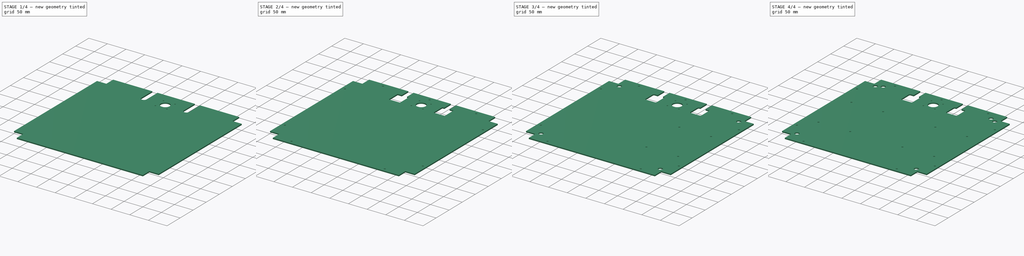
[diagram: build sequence overview — one tinted view per stage of 4, left to right]
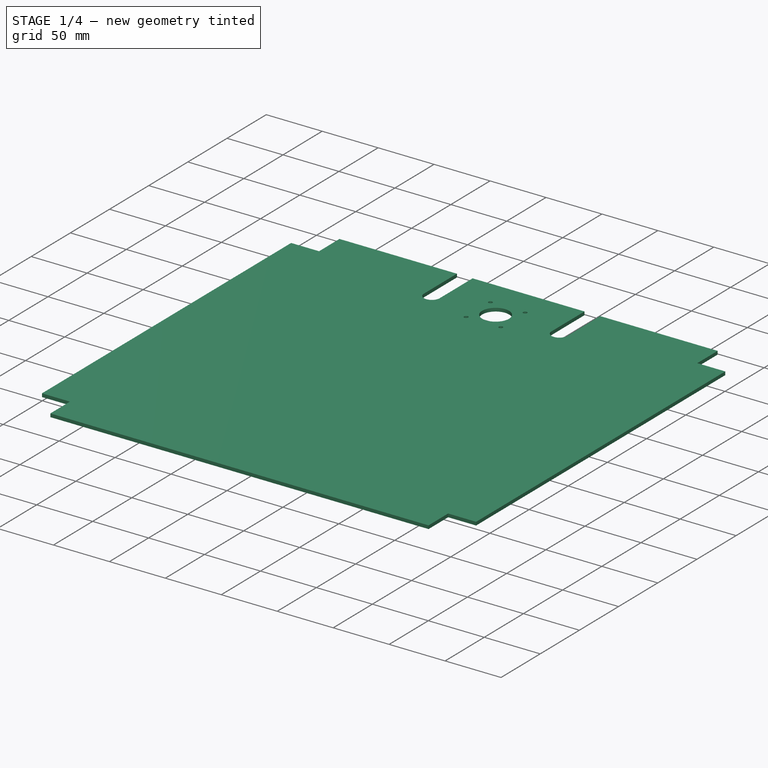
[diagram: stage 1 of 4 — iso view after this stage's code; geometry added in this stage tinted green]
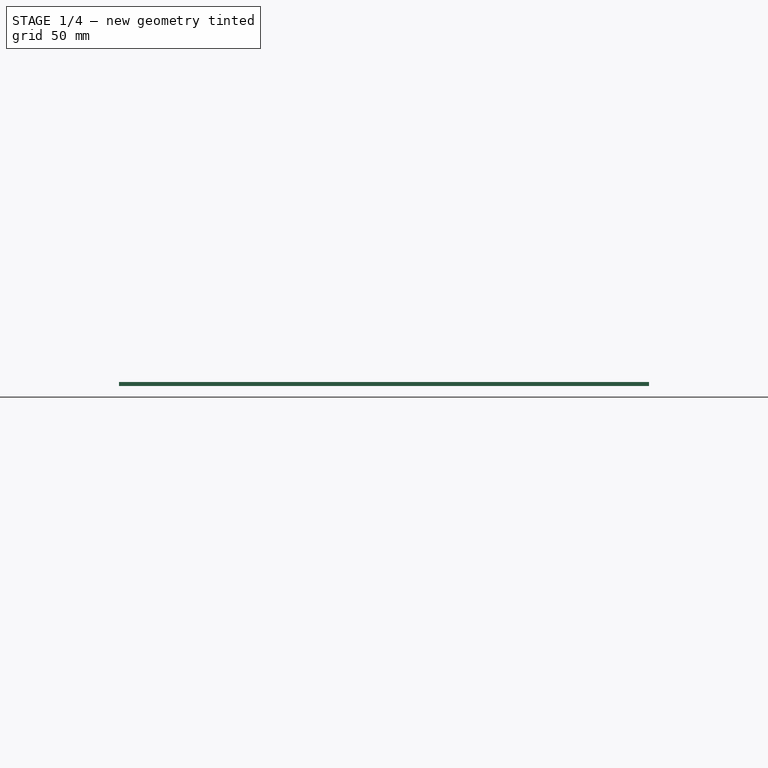
[diagram: stage 1 of 4 — front view after this stage's code; geometry added in this stage tinted green]
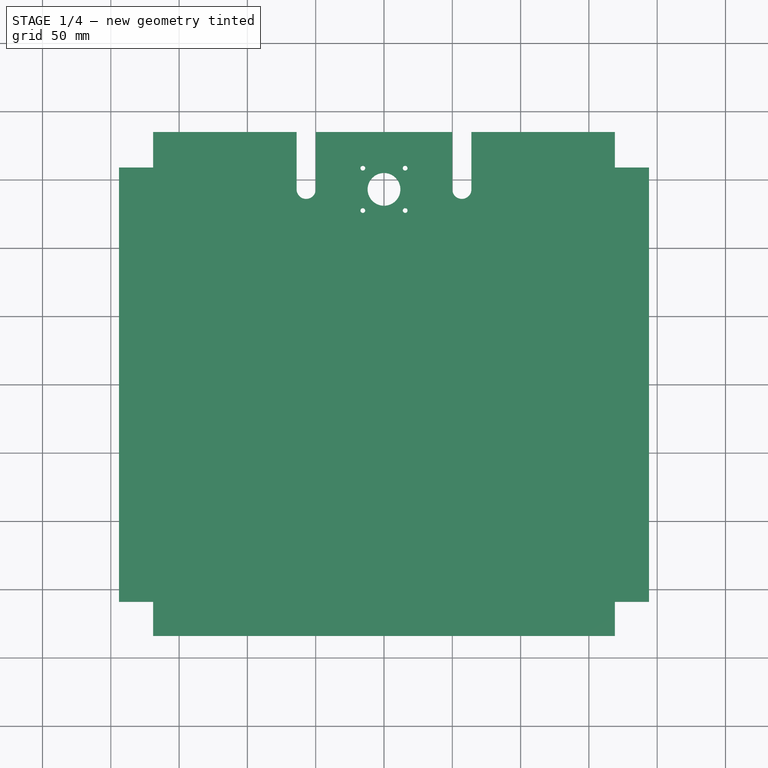
[diagram: stage 1 of 4 — top view after this stage's code; geometry added in this stage tinted green]
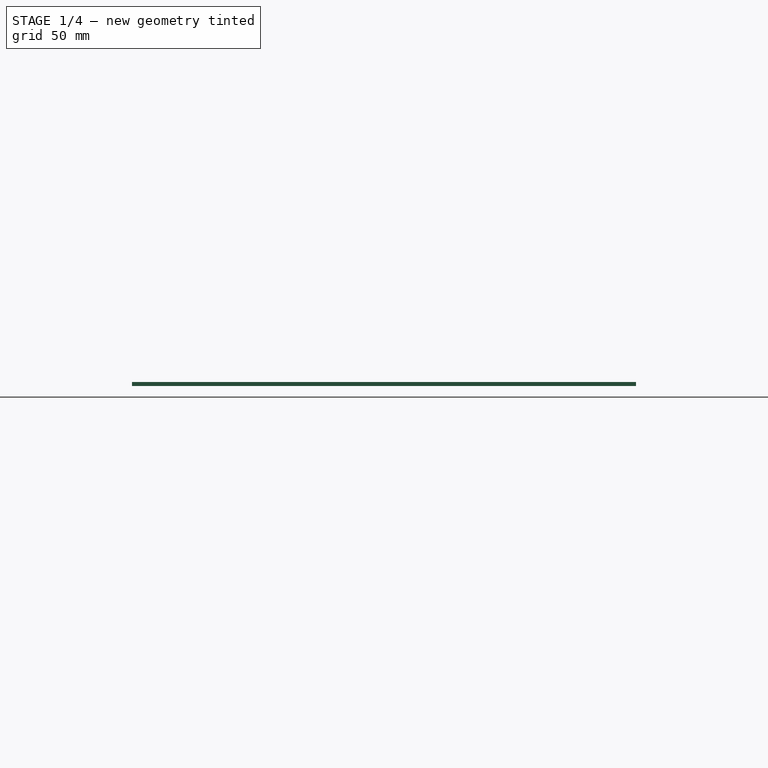
[diagram: stage 1 of 4 — right view after this stage's code; geometry added in this stage tinted green]
FCSTD DOCUMENT  (FreeCAD 0.17R13522 (Git))
Label: Corelia_0_Base_plate
License: All rights reserved
LicenseURL: http://en.wikipedia.org/wiki/All_rights_reserved
objects: Sketcher::SketchObject×8, PartDesign::Pocket×7, PartDesign::Mirrored×4, PartDesign::Fillet×2, PartDesign::Pad×1, TechDraw::DrawSVGTemplate×1, PartDesign::Body×1, TechDraw::DrawViewPart×1, TechDraw::DrawPage×1
note: 31 computed .brp shape members not serialized (recipe doc carries the construction recipe); baked Part::Feature solids carry a one-line shape summary decoded from their .brp

FEATURE [Sketcher::SketchObject] Sketch
  MapMode = 5
  Support = -> [XY_Plane]
  sketch-geometry (4):
    g0: LineSegment StartX=-194 StartY=185 StartZ=0 EndX=194 EndY=185 EndZ=0
    g1: LineSegment StartX=194 StartY=185 StartZ=0 EndX=194 EndY=-184 EndZ=0
    g2: LineSegment StartX=194 StartY=-184 StartZ=0 EndX=-194 EndY=-184 EndZ=0
    g3: LineSegment StartX=-194 StartY=-184 StartZ=0 EndX=-194 EndY=185 EndZ=0
  constraints (12):
    c: Coincident(g0,g1)
    c: Coincident(g1,g2)
    c: Coincident(g2,g3)
    c: Coincident(g3,g0)
    c: Horizontal(g0)
    c: Horizontal(g2)
    c: Vertical(g1)
    c: Vertical(g3)
    c: DistanceX(g0,g0) = 388
    c: DistanceY(g1,g1) = 369
    c: DistanceX(g0) = 194
    c: DistanceY(g0) = 185
FEATURE [PartDesign::Pad] Pad
  Length = 3
  Length2 = 100
  Profile = -> Sketch
  Type = 0
FEATURE [Sketcher::SketchObject] Sketch001
  MapMode = 5
  Placement = pos=(0,0,3) rot=(0,0,1;0rad)
  Support = -> [Pad]
  sketch-geometry (8):
    g0: LineSegment StartX=169 StartY=185 StartZ=0 EndX=194 EndY=185 EndZ=0
    g1: LineSegment StartX=194 StartY=185 StartZ=0 EndX=194 EndY=159 EndZ=0
    g2: LineSegment StartX=194 StartY=159 StartZ=0 EndX=169 EndY=159 EndZ=0
    g3: LineSegment StartX=169 StartY=159 StartZ=0 EndX=169 EndY=185 EndZ=0
    g4: LineSegment StartX=194 StartY=-184 StartZ=0 EndX=169 EndY=-184 EndZ=0
    g5: LineSegment StartX=169 StartY=-184 StartZ=0 EndX=169 EndY=-159 EndZ=0
    g6: LineSegment StartX=169 StartY=-159 StartZ=0 EndX=194 EndY=-159 EndZ=0
    g7: LineSegment StartX=194 StartY=-159 StartZ=0 EndX=194 EndY=-184 EndZ=0
  constraints (24):
    c: Coincident(g0,g1)
    c: Coincident(g1,g2)
    c: Coincident(g2,g3)
    c: Coincident(g3,g0)
    c: Horizontal(g0)
    c: Horizontal(g2)
    c: Vertical(g1)
    c: Vertical(g3)
    c: DistanceX(g0,g0) = 25
    c: DistanceY(g1,g1) = 26
    c: DistanceX(g0) = 194
    c: DistanceY(g0) = 185
    c: Coincident(g4,g5)
    c: Coincident(g5,g6)
    c: Coincident(g6,g7)
    c: Coincident(g7,g4)
    c: Horizontal(g4)
    c: Horizontal(g6)
    c: Vertical(g5)
    c: Vertical(g7)
    c: Equal(g0,g6)
    c: PointOnObject(g0,g7)
    c: DistanceY(g4) = -184
    c: DistanceY(g7,g7) = 25
FEATURE [PartDesign::Pocket] Pocket
  BaseFeature = -> Pad
  Length = 5
  Length2 = 100
  Profile = -> Sketch001
  Type = 1
FEATURE [PartDesign::Mirrored] Mirrored
  BaseFeature = -> Pocket
  MirrorPlane = -> YZ_Plane
  Originals = -> [Pocket]
FEATURE [Sketcher::SketchObject] Sketch002
  MapMode = 5
  Placement = pos=(0,0,3) rot=(0,0,1;0rad)
  Support = -> [Mirrored]
  sketch-geometry (19):
    g0: LineSegment StartX=-64 StartY=185 StartZ=0 EndX=-50 EndY=185 EndZ=0
    g1: LineSegment StartX=-50 StartY=185 StartZ=0 EndX=-50 EndY=143 EndZ=0
    g2: LineSegment [constr] StartX=-50 StartY=143 StartZ=0 EndX=-64 EndY=143 EndZ=0
    g3: LineSegment StartX=-64 StartY=143 StartZ=0 EndX=-64 EndY=185 EndZ=0
    g4: ArcOfCircle CenterX=-57 CenterY=143 CenterZ=0 NormalX=0 NormalY=0 NormalZ=1 AngleXU=0 Radius=7 StartAngle=3.14159 EndAngle=6.28319
    g5: LineSegment StartX=50 StartY=185 StartZ=0 EndX=64 EndY=185 EndZ=0
    g6: LineSegment StartX=64 StartY=185 StartZ=0 EndX=64 EndY=143 EndZ=0
    g7: LineSegment [constr] StartX=64 StartY=143 StartZ=0 EndX=50 EndY=143 EndZ=0
    g8: LineSegment StartX=50 StartY=143 StartZ=0 EndX=50 EndY=185 EndZ=0
    g9: ArcOfCircle CenterX=57 CenterY=143 CenterZ=0 NormalX=0 NormalY=0 NormalZ=1 AngleXU=0 Radius=7 StartAngle=3.14159 EndAngle=6.28319
    g10: Circle CenterX=0 CenterY=143 CenterZ=0 NormalX=0 NormalY=0 NormalZ=1 AngleXU=0 Radius=12
    g11: LineSegment [constr] StartX=-15.5 StartY=158.5 StartZ=0 EndX=15.5 EndY=158.5 EndZ=0
    g12: LineSegment [constr] StartX=15.5 StartY=158.5 StartZ=0 EndX=15.5 EndY=127.5 EndZ=0
    g13: LineSegment [constr] StartX=15.5 StartY=127.5 StartZ=0 EndX=-15.5 EndY=127.5 EndZ=0
    g14: LineSegment [constr] StartX=-15.5 StartY=127.5 StartZ=0 EndX=-15.5 EndY=158.5 EndZ=0
    g15: Circle CenterX=-15.5 CenterY=158.5 CenterZ=0 NormalX=0 NormalY=0 NormalZ=1 AngleXU=0 Radius=1.75
    g16: Circle CenterX=15.5 CenterY=158.5 CenterZ=0 NormalX=0 NormalY=0 NormalZ=1 AngleXU=0 Radius=1.75
    g17: Circle CenterX=15.5 CenterY=127.5 CenterZ=0 NormalX=0 NormalY=0 NormalZ=1 AngleXU=0 Radius=1.75
    g18: Circle CenterX=-15.5 CenterY=127.5 CenterZ=0 NormalX=0 NormalY=0 NormalZ=1 AngleXU=0 Radius=1.75
  constraints (54):
    c: Coincident(g0,g1)
    c: Coincident(g1,g2)
    c: Coincident(g2,g3)
    c: Coincident(g3,g0)
    c: Horizontal(g0)
    c: Horizontal(g2)
    c: Vertical(g1)
    c: Vertical(g3)
    c: PointOnObject(g4,g2)
    c: Coincident(g4,g2)
    c: PointOnObject(g4,g2)
    c: Coincident(g4,g1)
    c: DistanceY(g3,g3) = 42
    c: DistanceX(g0,g0) = 14
    c: DistanceY(g-1,g0) = 185
    c: Coincident(g5,g6)
    c: Coincident(g6,g7)
    c: Coincident(g7,g8)
    c: Coincident(g8,g5)
    c: Horizontal(g5)
    c: Horizontal(g7)
    c: Vertical(g6)
    c: Vertical(g8)
    c: PointOnObject(g9,g7)
    c: Coincident(g9,g7)
    c: PointOnObject(g9,g7)
    c: Coincident(g9,g6)
    c: Equal(g0,g5)
    c: Symmetric(g4,g9,g-2)
    c: Equal(g8,g1)
    c: DistanceX(g4,g9) = 114
    c: PointOnObject(g10,g-2)
    c: Radius(g10) = 12
    c: DistanceY(g10,g0) = 42
    c: Coincident(g11,g12)
    c: Coincident(g12,g13)
    c: Coincident(g13,g14)
    c: Coincident(g14,g11)
    c: Horizontal(g11)
    c: Horizontal(g13)
    c: Vertical(g12)
    c: Vertical(g14)
    c: Equal(g11,g14)
    c: DistanceX(g11,g11) = 31
    c: DistanceX(g10,g12) = 15.5
    c: DistanceY(g10,g12) = -15.5
    c: Coincident(g15,g11)
    c: Radius(g15) = 1.75
    c: Coincident(g16,g11)
    c: Coincident(g17,g12)
    c: Coincident(g18,g13)
    c: Equal(g18,g17)
    c: Equal(g17,g16)
    c: Equal(g16,g15)
FEATURE [PartDesign::Pocket] Pocket001
  BaseFeature = -> Mirrored
  Length = 5
  Length2 = 100
  Profile = -> Sketch002
  Type = 1
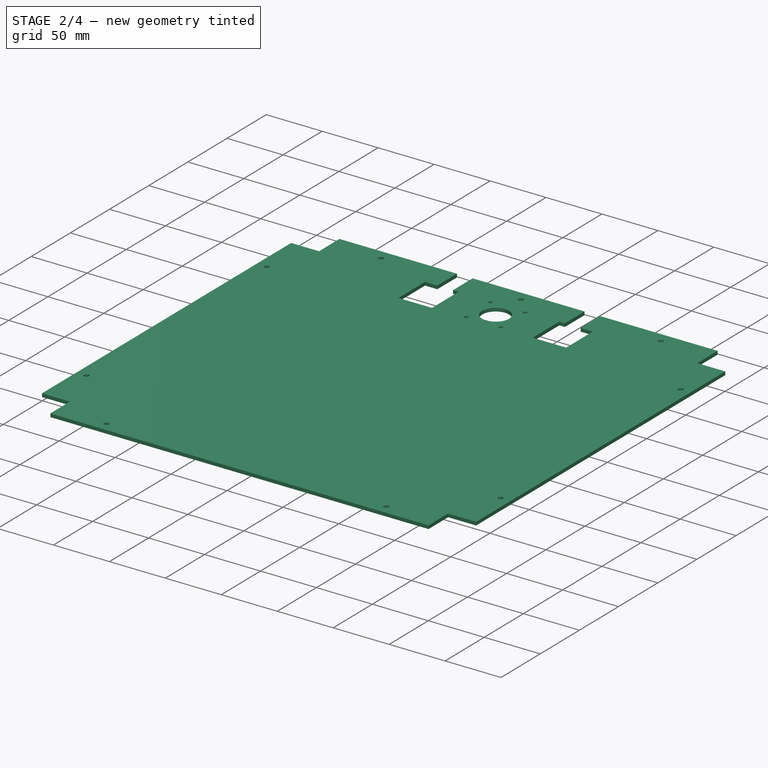
[diagram: stage 2 of 4 — iso view after this stage's code; geometry added in this stage tinted green]
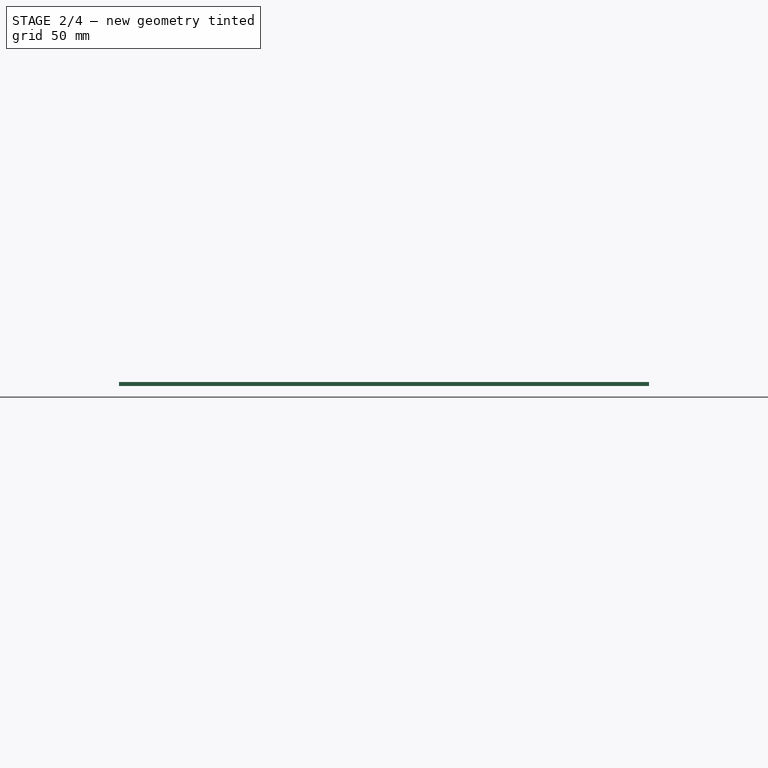
[diagram: stage 2 of 4 — front view after this stage's code; geometry added in this stage tinted green]
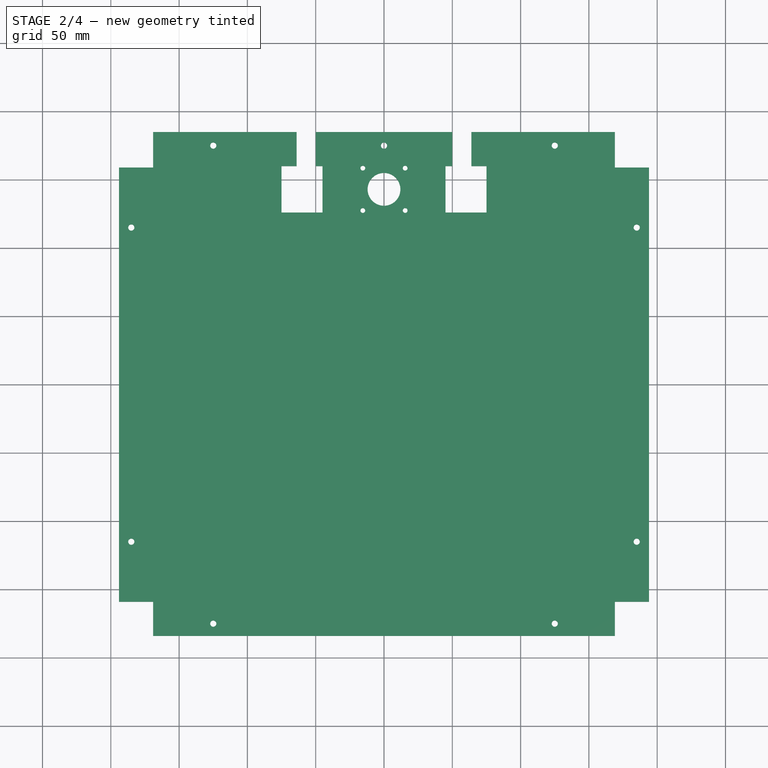
[diagram: stage 2 of 4 — top view after this stage's code; geometry added in this stage tinted green]
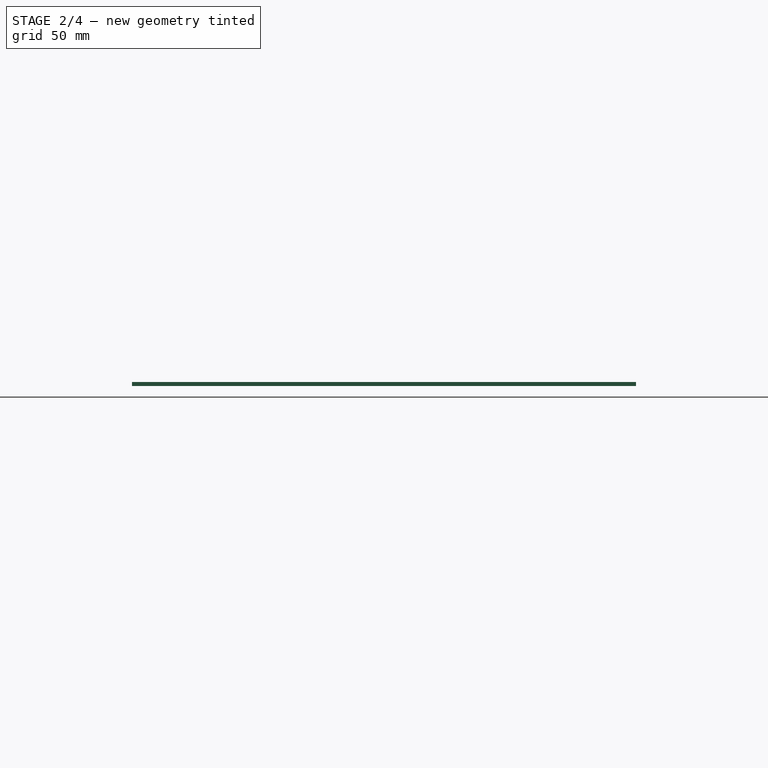
[diagram: stage 2 of 4 — right view after this stage's code; geometry added in this stage tinted green]
FEATURE [Sketcher::SketchObject] Sketch003
  MapMode = 5
  Placement = pos=(0,0,3) rot=(0,0,1;0rad)
  Support = -> [Pocket001]
  sketch-geometry (13):
    g0: Circle CenterX=125 CenterY=175 CenterZ=0 NormalX=0 NormalY=0 NormalZ=1 AngleXU=0 Radius=2.25
    g1: Circle CenterX=185 CenterY=115 CenterZ=0 NormalX=0 NormalY=0 NormalZ=1 AngleXU=0 Radius=2.25
    g2: Circle CenterX=125 CenterY=-175 CenterZ=0 NormalX=0 NormalY=0 NormalZ=1 AngleXU=0 Radius=2.25
    g3: Circle CenterX=-125 CenterY=175 CenterZ=0 NormalX=0 NormalY=0 NormalZ=1 AngleXU=0 Radius=2.25
    g4: Circle CenterX=-185 CenterY=115 CenterZ=0 NormalX=0 NormalY=0 NormalZ=1 AngleXU=0 Radius=2.25
    g5: Circle CenterX=-125 CenterY=-175 CenterZ=0 NormalX=0 NormalY=0 NormalZ=1 AngleXU=0 Radius=2.25
    g6: Circle CenterX=0 CenterY=175 CenterZ=0 NormalX=0 NormalY=0 NormalZ=1 AngleXU=0 Radius=2.25
    g7: LineSegment [constr] StartX=-185 StartY=115 StartZ=0 EndX=185 EndY=115 EndZ=0
    g8: LineSegment [constr] StartX=185 StartY=115 StartZ=0 EndX=185 EndY=-115 EndZ=0
    g9: LineSegment [constr] StartX=185 StartY=-115 StartZ=0 EndX=-185 EndY=-115 EndZ=0
    g10: LineSegment [constr] StartX=-185 StartY=-115 StartZ=0 EndX=-185 EndY=115 EndZ=0
    g11: Circle CenterX=-185 CenterY=-115 CenterZ=0 NormalX=0 NormalY=0 NormalZ=1 AngleXU=0 Radius=2.25
    g12: Circle CenterX=185 CenterY=-115 CenterZ=0 NormalX=0 NormalY=0 NormalZ=1 AngleXU=0 Radius=2.25
  constraints (32):
    c: Symmetric(g0,g2,g-1)
    c: Equal(g2,g1)
    c: Equal(g1,g0)
    c: Radius(g0) = 2.25
    c: DistanceX(g0) = 125
    c: DistanceY(g0) = 175
    c: DistanceX(g1) = 185
    c: Equal(g0,g3)
    c: Equal(g3,g4)
    c: Equal(g4,g5)
    c: Symmetric(g4,g1,g-2)
    c: Symmetric(g5,g2,g-2)
    c: PointOnObject(g6,g-2)
    c: Equal(g6,g3)
    c: DistanceY(g4) = 115
    c: DistanceY(g6) = 175
    c: Coincident(g7,g8)
    c: Coincident(g8,g9)
    c: Coincident(g9,g10)
    c: Coincident(g10,g7)
    c: Horizontal(g7)
    c: Horizontal(g9)
    c: Vertical(g8)
    c: Vertical(g10)
    c: Coincident(g7,g4)
    c: Coincident(g7,g1)
    c: DistanceY(g10,g10) = 230
    c: Coincident(g11,g9)
    c: Equal(g11,g0)
    c: Coincident(g12,g8)
    c: Equal(g12,g0)
    c: Symmetric(g3,g0,g-2)
FEATURE [PartDesign::Pocket] Pocket002
  BaseFeature = -> Pocket001
  Length = 5
  Length2 = 100
  Profile = -> Sketch003
  Type = 1
FEATURE [Sketcher::SketchObject] Sketch004
  MapMode = 5
  Placement = pos=(0,0,3) rot=(0,0,1;0rad)
  Support = -> [Pocket002]
  sketch-geometry (4):
    g0: LineSegment StartX=-75 StartY=160 StartZ=0 EndX=-45 EndY=160 EndZ=0
    g1: LineSegment StartX=-45 StartY=160 StartZ=0 EndX=-45 EndY=126 EndZ=0
    g2: LineSegment StartX=-45 StartY=126 StartZ=0 EndX=-75 EndY=126 EndZ=0
    g3: LineSegment StartX=-75 StartY=126 StartZ=0 EndX=-75 EndY=160 EndZ=0
  constraints (12):
    c: Coincident(g0,g1)
    c: Coincident(g1,g2)
    c: Coincident(g2,g3)
    c: Coincident(g3,g0)
    c: Horizontal(g0)
    c: Horizontal(g2)
    c: Vertical(g1)
    c: Vertical(g3)
    c: DistanceX(g1,g-1) = 45
    c: DistanceY(g3,g3) = 34
    c: DistanceX(g2,g2) = 30
    c: DistanceY(g1) = 126
FEATURE [PartDesign::Pocket] Pocket003
  BaseFeature = -> Pocket002
  Length = 5
  Length2 = 100
  Profile = -> Sketch004
  Type = 1
FEATURE [PartDesign::Mirrored] Mirrored001
  BaseFeature = -> Pocket003
  MirrorPlane = -> YZ_Plane
  Originals = -> [Pocket003]
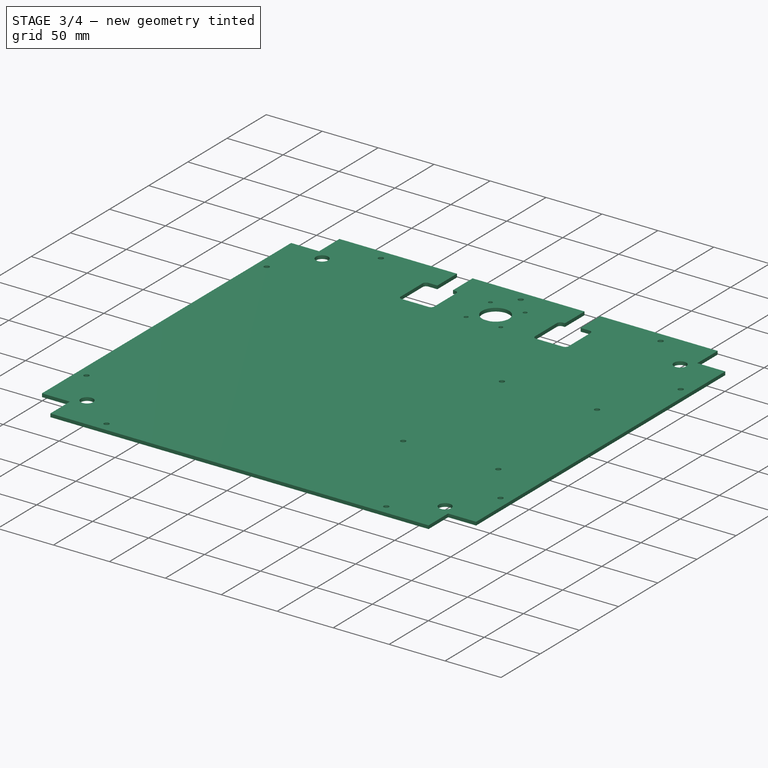
[diagram: stage 3 of 4 — iso view after this stage's code; geometry added in this stage tinted green]
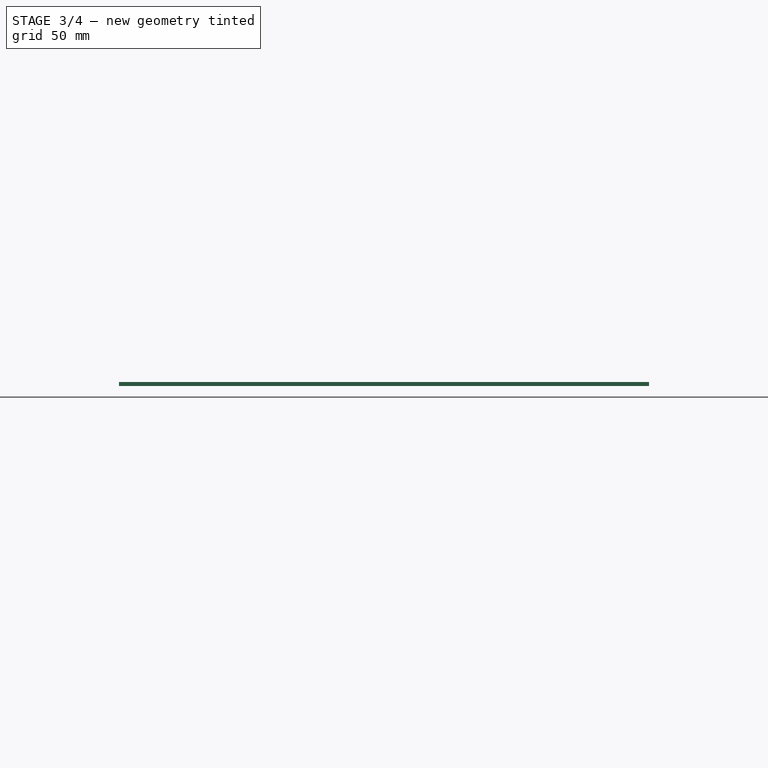
[diagram: stage 3 of 4 — front view after this stage's code; geometry added in this stage tinted green]
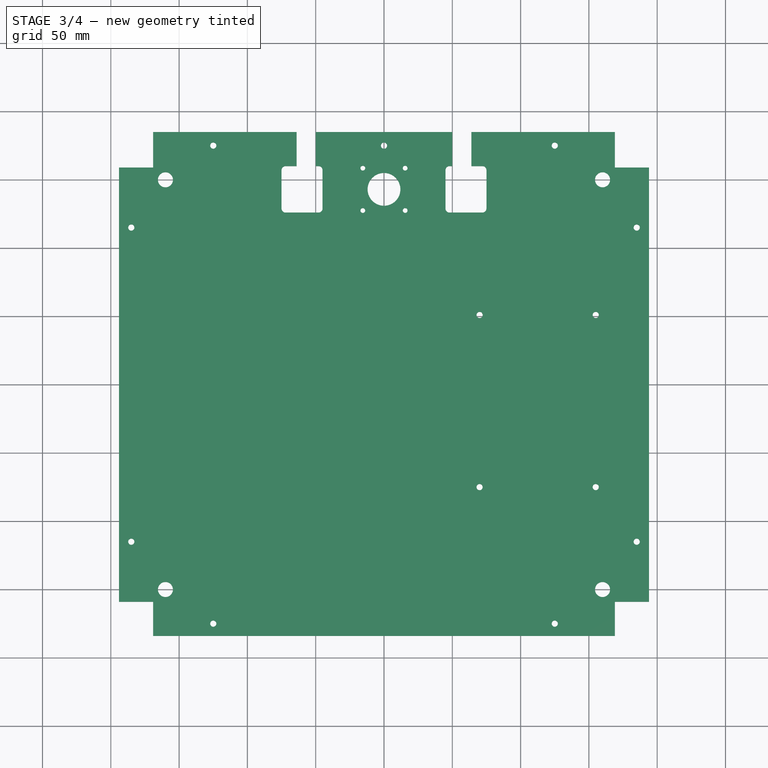
[diagram: stage 3 of 4 — top view after this stage's code; geometry added in this stage tinted green]
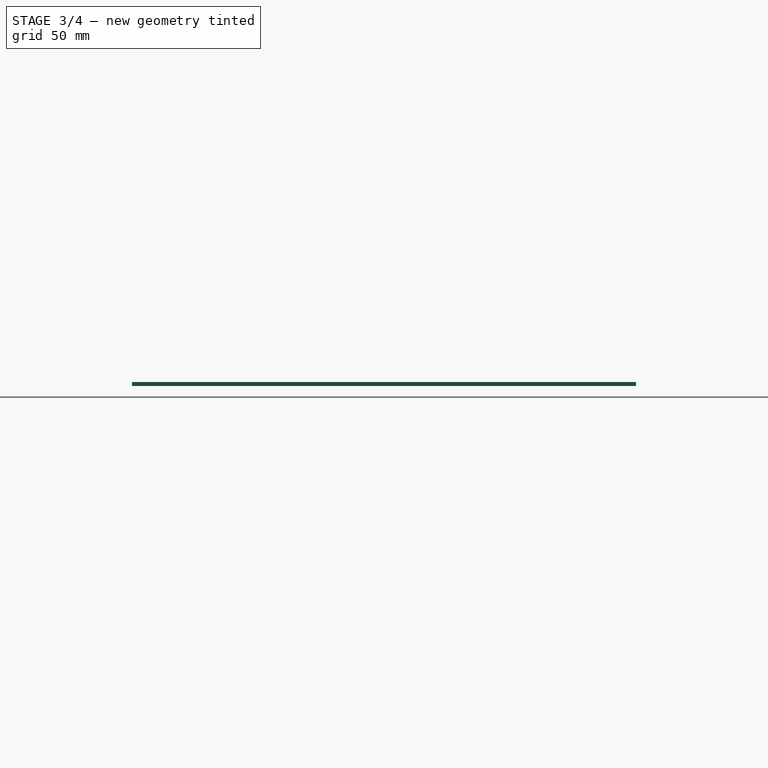
[diagram: stage 3 of 4 — right view after this stage's code; geometry added in this stage tinted green]
FEATURE [PartDesign::Fillet] Fillet
  Base = -> Mirrored001 [Edge108,Edge109,Edge110,Edge111,Edge102,Edge101,Edge103,Edge100]
  BaseFeature = -> Mirrored001
  Radius = 3
FEATURE [Sketcher::SketchObject] Sketch005
  MapMode = 5
  Placement = pos=(0,0,3) rot=(0,0,1;0rad)
  Support = -> [Fillet]
  sketch-geometry (8):
    g0: Circle CenterX=-160 CenterY=150 CenterZ=0 NormalX=0 NormalY=0 NormalZ=1 AngleXU=0 Radius=5.5
    g1: Circle CenterX=-160 CenterY=-150 CenterZ=0 NormalX=0 NormalY=0 NormalZ=1 AngleXU=0 Radius=5.5
    g2: Circle CenterX=160 CenterY=150 CenterZ=0 NormalX=0 NormalY=0 NormalZ=1 AngleXU=0 Radius=5.5
    g3: Circle CenterX=160 CenterY=-150 CenterZ=0 NormalX=0 NormalY=0 NormalZ=1 AngleXU=0 Radius=5.5
    g4: LineSegment [constr] StartX=-160 StartY=150 StartZ=0 EndX=160 EndY=150 EndZ=0
    g5: LineSegment [constr] StartX=160 StartY=150 StartZ=0 EndX=160 EndY=-150 EndZ=0
    g6: LineSegment [constr] StartX=160 StartY=-150 StartZ=0 EndX=-160 EndY=-150 EndZ=0
    g7: LineSegment [constr] StartX=-160 StartY=-150 StartZ=0 EndX=-160 EndY=150 EndZ=0
  constraints (20):
    c: Coincident(g4,g5)
    c: Coincident(g5,g6)
    c: Coincident(g6,g7)
    c: Coincident(g7,g4)
    c: Horizontal(g4)
    c: Horizontal(g6)
    c: Vertical(g5)
    c: Vertical(g7)
    c: Coincident(g4,g0)
    c: Coincident(g5,g3)
    c: Coincident(g2,g4)
    c: Coincident(g1,g6)
    c: Equal(g0,g1)
    c: Equal(g1,g3)
    c: Equal(g3,g2)
    c: Radius(g0) = 5.5
    c: Symmetric(g1,g0,g-1)
    c: Symmetric(g0,g2,g-2)
    c: DistanceY(g7,g7) = 300
    c: DistanceX(g4,g4) = 320
FEATURE [PartDesign::Pocket] Pocket004
  BaseFeature = -> Fillet
  Length = 5
  Length2 = 100
  Profile = -> Sketch005
  Type = 1
FEATURE [Sketcher::SketchObject] Sketch006
  MapMode = 5
  Placement = pos=(0,0,3) rot=(0,0,1;0rad)
  Support = -> [Pocket004]
  sketch-geometry (8):
    g0: LineSegment [constr] StartX=70 StartY=51 StartZ=0 EndX=155 EndY=51 EndZ=0
    g1: LineSegment [constr] StartX=155 StartY=51 StartZ=0 EndX=155 EndY=-75 EndZ=0
    g2: LineSegment [constr] StartX=155 StartY=-75 StartZ=0 EndX=70 EndY=-75 EndZ=0
    g3: LineSegment [constr] StartX=70 StartY=-75 StartZ=0 EndX=70 EndY=51 EndZ=0
    g4: Circle CenterX=70 CenterY=51 CenterZ=0 NormalX=0 NormalY=0 NormalZ=1 AngleXU=0 Radius=2.25
    g5: Circle CenterX=155 CenterY=51 CenterZ=0 NormalX=0 NormalY=0 NormalZ=1 AngleXU=0 Radius=2.25
    g6: Circle CenterX=70 CenterY=-75 CenterZ=0 NormalX=0 NormalY=0 NormalZ=1 AngleXU=0 Radius=2.25
    g7: Circle CenterX=155 CenterY=-75 CenterZ=0 NormalX=0 NormalY=0 NormalZ=1 AngleXU=0 Radius=2.25
  constraints (20):
    c: Coincident(g0,g1)
    c: Coincident(g1,g2)
    c: Coincident(g2,g3)
    c: Coincident(g3,g0)
    c: Horizontal(g0)
    c: Horizontal(g2)
    c: Vertical(g1)
    c: Vertical(g3)
    c: DistanceX(g0,g0) = 85
    c: DistanceY(g1,g1) = 126
    c: DistanceX(g2) = 70
    c: DistanceY(g2) = -75
    c: Coincident(g4,g0)
    c: Coincident(g5,g0)
    c: Coincident(g6,g2)
    c: Coincident(g7,g1)
    c: Equal(g6,g7)
    c: Equal(g7,g5)
    c: Equal(g5,g4)
    c: Radius(g4) = 2.25
FEATURE [PartDesign::Pocket] Pocket005
  BaseFeature = -> Pocket004
  Length = 5
  Length2 = 100
  Profile = -> Sketch006
  Type = 1
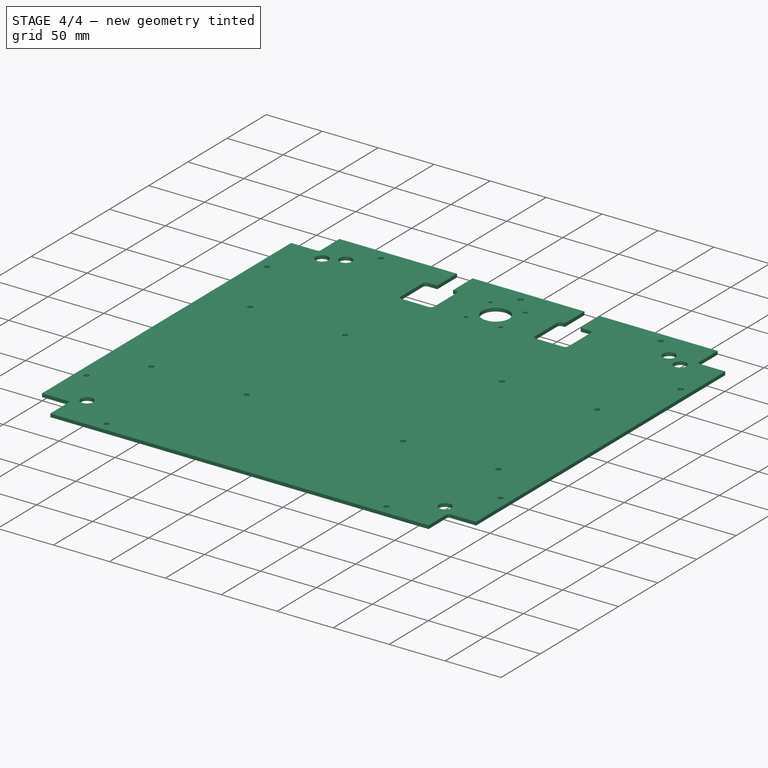
[diagram: stage 4 of 4 — iso view after this stage's code; geometry added in this stage tinted green]
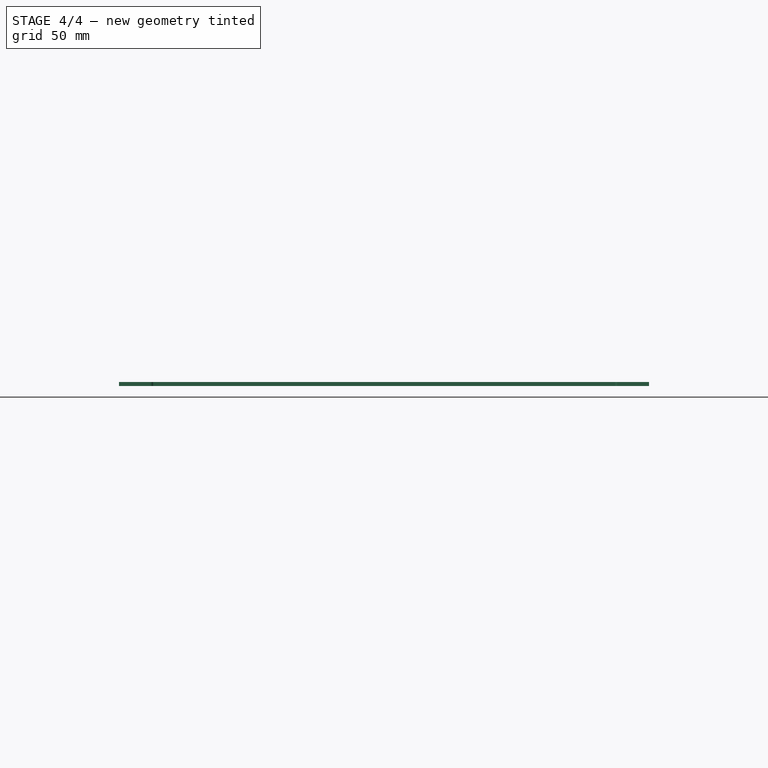
[diagram: stage 4 of 4 — front view after this stage's code; geometry added in this stage tinted green]
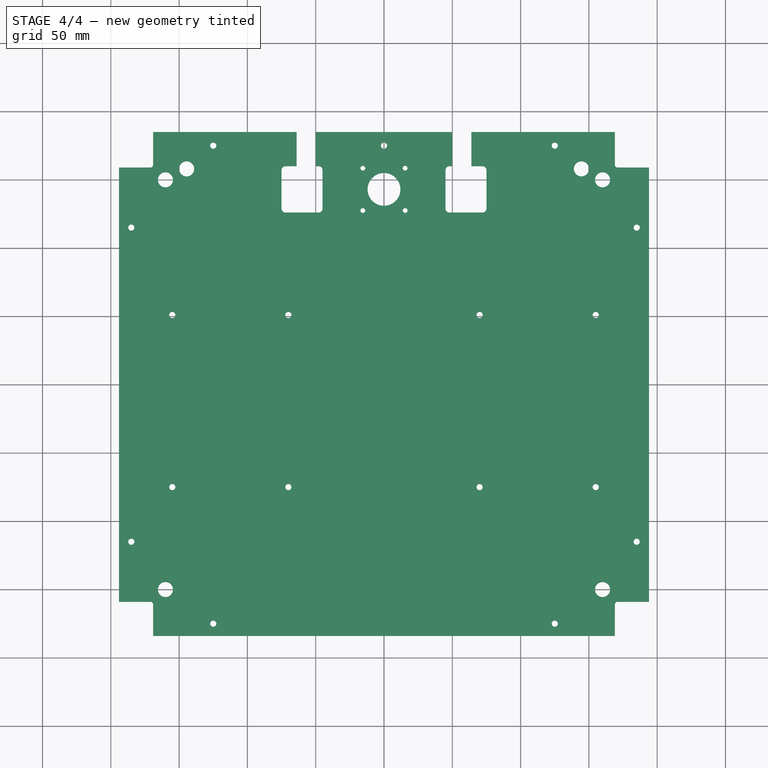
[diagram: stage 4 of 4 — top view after this stage's code; geometry added in this stage tinted green]
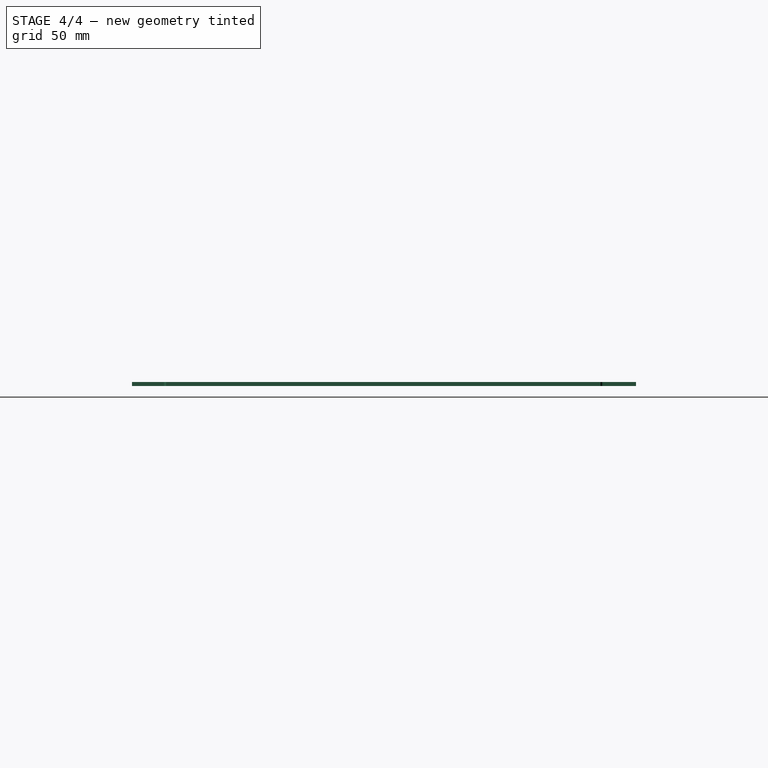
[diagram: stage 4 of 4 — right view after this stage's code; geometry added in this stage tinted green]
FEATURE [PartDesign::Mirrored] Mirrored002
  BaseFeature = -> Pocket005
  MirrorPlane = -> YZ_Plane
  Originals = -> [Pocket005]
FEATURE [PartDesign::Fillet] Fillet001
  Base = -> Mirrored002 [Edge89,Edge101,Edge113,Edge77]
  BaseFeature = -> Mirrored002
  Radius = 2
FEATURE [Sketcher::SketchObject] Sketch007
  MapMode = 5
  Placement = pos=(0,0,0) rot=(1,0,0;3.14159rad)
  Support = -> [Fillet001]
  sketch-geometry (1):
    g0: Circle CenterX=144.5 CenterY=-158 CenterZ=0 NormalX=0 NormalY=0 NormalZ=1 AngleXU=0 Radius=5.5
  constraints (3):
    c: Radius(g0) = 5.5
    c: DistanceX(g0) = 144.5
    c: DistanceY(g0) = -158
FEATURE [PartDesign::Pocket] Pocket006
  BaseFeature = -> Fillet001
  Length = 5
  Length2 = 100
  Profile = -> Sketch007
  Type = 1
FEATURE [TechDraw::DrawSVGTemplate] Template
  Height = 420
  Orientation = 1
  Width = 594
FEATURE [PartDesign::Mirrored] Mirrored003
  BaseFeature = -> Pocket006
  MirrorPlane = -> YZ_Plane
  Originals = -> [Pocket006]
FEATURE [PartDesign::Body] Body
  Group = -> [Sketch,Pad,Sketch001,Pocket,Mirrored,Sketch002,Pocket001,Sketch003,Pocket002,Sketch004,Pocket003,Mirrored001,Fillet,Sketch005,Pocket004,Sketch006,Pocket005,Mirrored002,Fillet001,Sketch007,Pocket006,Mirrored003]
  Origin = -> Origin
  Tip = -> Mirrored003
FEATURE [TechDraw::DrawViewPart] View
  CoarseView = false
  Direction = (0,0,1)
  Focus = 100
  HardHidden = false
  IsoCount = 0
  IsoHidden = false
  IsoVisible = false
  LockPosition = false
  Perspective = false
  Rotation = 0
  ScaleType = 0
  SeamHidden = false
  SeamVisible = false
  SmoothHidden = false
  SmoothVisible = false
  Source = -> [Mirrored003]
  X = 297
  Y = 210
FEATURE [TechDraw::DrawPage] Page
  KeepUpdated = true
  ProjectionType = 0
  Template = -> Template
  Views = -> [View]
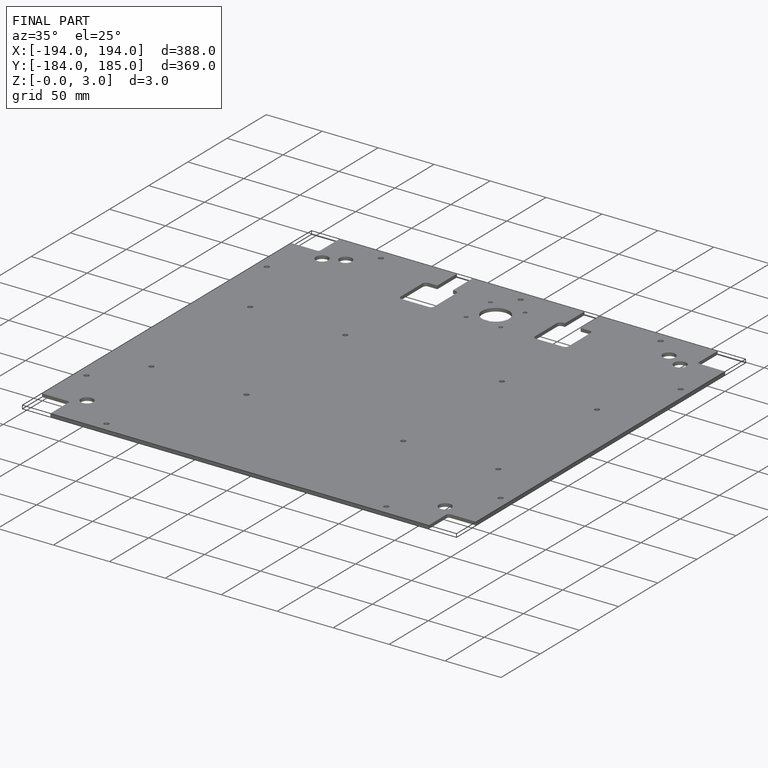
[diagram: finished part — iso view with bounding-box wireframe]
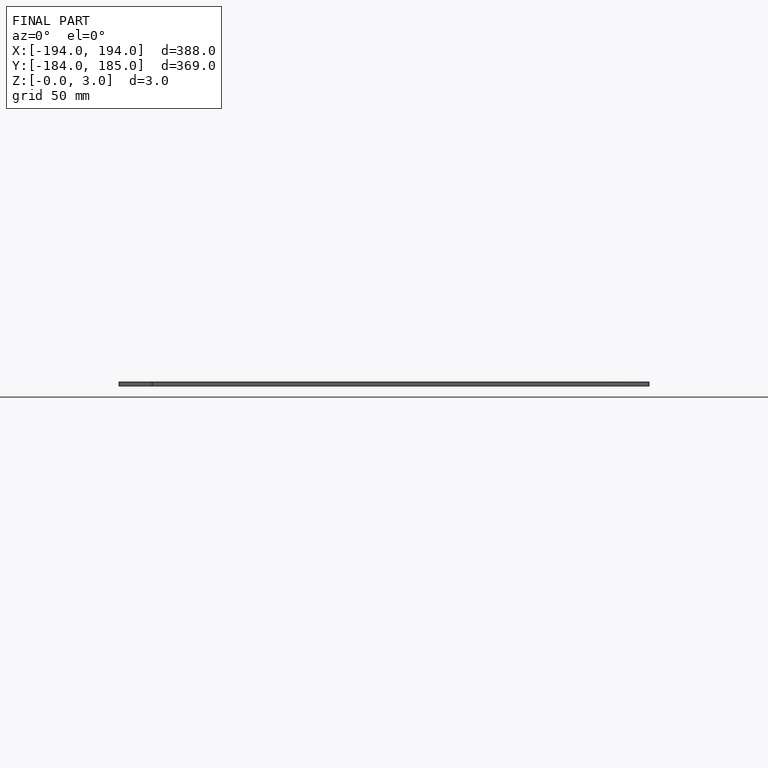
[diagram: finished part — front view with bounding-box wireframe]
